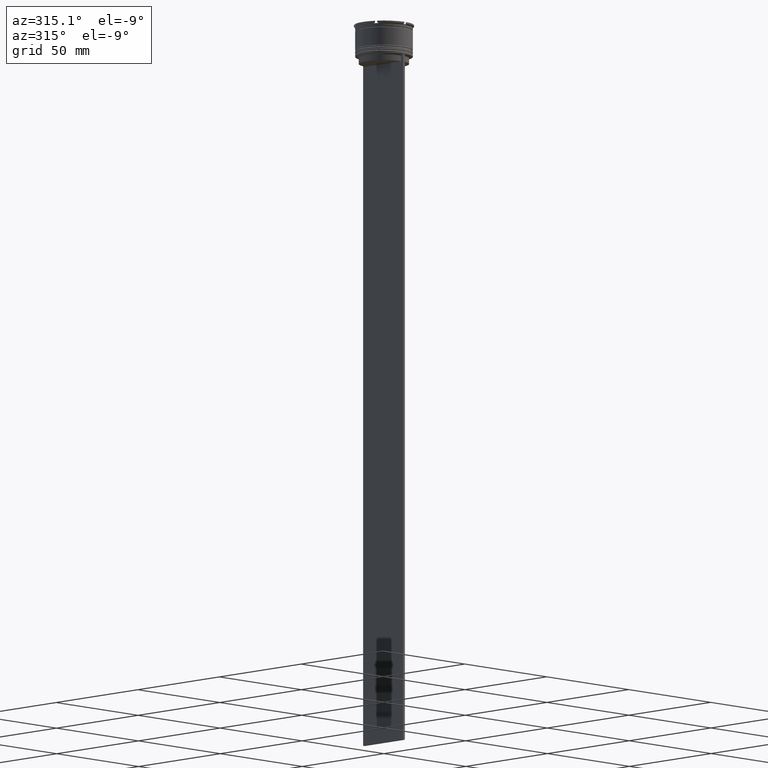
[diagram: clean part render]
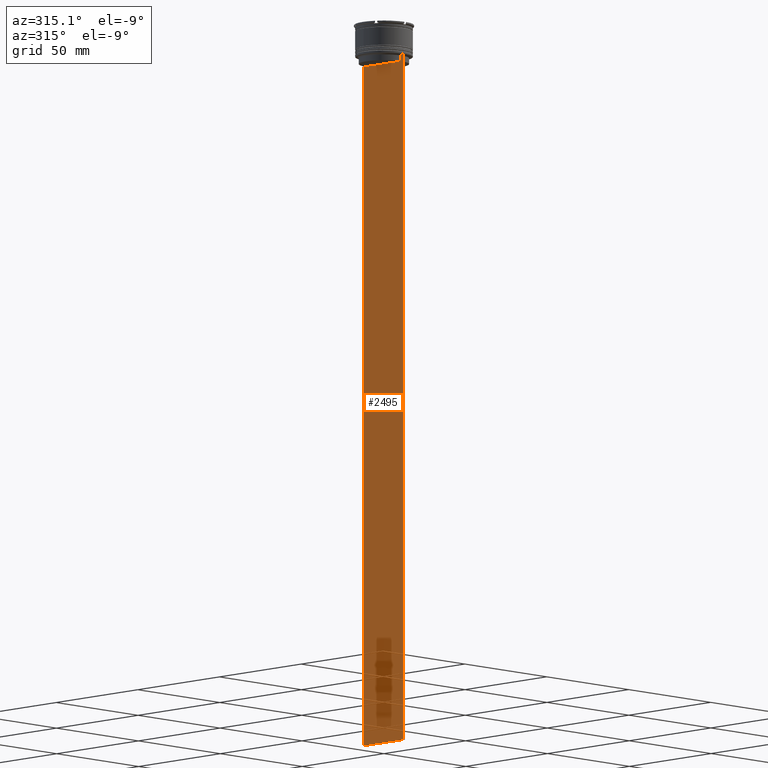
[diagram: same view with one face highlighted and labeled with its STEP entity id]
A machine part, auxiliary view. The second image highlights one B-rep face of the part: STEP entity #2495.
In plain terms, the highlighted planar face has unit normal (-1, 0, 0).
Its self-contained STEP definition (entity closure, byte-faithful):
#9 = CARTESIAN_POINT ( 'NONE',  ( -0.4999999999999997780, -11.22219891450652973, -14.16667035398018903 ) ) ;
#14 = EDGE_CURVE ( 'NONE', #767, #313, #2675, .T. ) ;
#53 = CARTESIAN_POINT ( 'NONE',  ( -0.4999999999999997780, -11.38902980942626719, -14.00000000000000178 ) ) ;
#58 = AXIS2_PLACEMENT_3D ( 'NONE', #1073, #882, #2788 ) ;
#74 = CARTESIAN_POINT ( 'NONE',  ( -0.4999999999999997780, -10.88852607105296322, 0.000000000000000000 ) ) ;
#90 = VERTEX_POINT ( 'NONE', #2469 ) ;
#109 = EDGE_CURVE ( 'NONE', #2188, #767, #2262, .T. ) ;
#141 = VERTEX_POINT ( 'NONE', #53 ) ;
#178 = ORIENTED_EDGE ( 'NONE', *, *, #14, .F. ) ;
#223 = CARTESIAN_POINT ( 'NONE',  ( -0.4999999999999997780, -11.05536450423839057, -14.33333718996393280 ) ) ;
#240 = CARTESIAN_POINT ( 'NONE',  ( -0.4999999999999997780, -12.25000000000000711, -314.0000000000000000 ) ) ;
#264 = ORIENTED_EDGE ( 'NONE', *, *, #1636, .F. ) ;
#306 = DIRECTION ( 'NONE',  ( -0.000000000000000000, -0.000000000000000000, 1.000000000000000000 ) ) ;
#313 = VERTEX_POINT ( 'NONE', #1238 ) ;
#327 = DIRECTION ( 'NONE',  ( 0.000000000000000000, -1.000000000000000000, 0.000000000000000000 ) ) ;
#352 = ORIENTED_EDGE ( 'NONE', *, *, #1271, .F. ) ;
#460 = EDGE_CURVE ( 'NONE', #313, #141, #1222, .T. ) ;
#486 = CARTESIAN_POINT ( 'NONE',  ( -0.4999999999999997780, 12.24999999999999289, -314.0000000000000000 ) ) ;
#509 = VERTEX_POINT ( 'NONE', #240 ) ;
#520 = CARTESIAN_POINT ( 'NONE',  ( -0.4999999999999997780, 10.88852607105296322, 0.000000000000000000 ) ) ;
#540 = DIRECTION ( 'NONE',  ( 0.000000000000000000, 0.000000000000000000, -1.000000000000000000 ) ) ;
#560 = LINE ( 'NONE', #2031, #1354 ) ;
#591 = ORIENTED_EDGE ( 'NONE', *, *, #1429, .F. ) ;
#702 = CARTESIAN_POINT ( 'NONE',  ( -0.4999999999999997780, 10.88852607105296322, -14.50000000000000000 ) ) ;
#727 = VERTEX_POINT ( 'NONE', #1167 ) ;
#735 = EDGE_CURVE ( 'NONE', #141, #1522, #560, .T. ) ;
#755 = CARTESIAN_POINT ( 'NONE',  ( -0.4999999999999997780, 12.24999999999999289, 10.52039967047845792 ) ) ;
#763 = EDGE_CURVE ( 'NONE', #727, #1302, #1411, .T. ) ;
#767 = VERTEX_POINT ( 'NONE', #1394 ) ;
#806 = DIRECTION ( 'NONE',  ( 0.000000000000000000, -1.000000000000000000, 0.000000000000000000 ) ) ;
#846 = VERTEX_POINT ( 'NONE', #2293 ) ;
#882 = DIRECTION ( 'NONE',  ( -1.000000000000000000, 0.000000000000000000, 0.000000000000000000 ) ) ;
#893 = EDGE_CURVE ( 'NONE', #509, #1302, #2306, .T. ) ;
#907 = EDGE_CURVE ( 'NONE', #727, #90, #2119, .T. ) ;
#934 = DIRECTION ( 'NONE',  ( 0.000000000000000000, -1.000000000000000000, 0.000000000000000000 ) ) ;
#1051 = CARTESIAN_POINT ( 'NONE',  ( -0.4999999999999997780, -12.25000000000000711, -14.00000000000000178 ) ) ;
#1073 = CARTESIAN_POINT ( 'NONE',  ( -0.4999999999999997780, -12.25000000000000711, 10.52039967047845792 ) ) ;
#1075 = CARTESIAN_POINT ( 'NONE',  ( -0.4999999999999997780, -10.88852607105296322, -14.50000000000000000 ) ) ;
#1098 = FACE_OUTER_BOUND ( 'NONE', #2437, .T. ) ;
#1127 = CARTESIAN_POINT ( 'NONE',  ( -0.4999999999999997780, 10.90000000000000213, -17.00000000000000000 ) ) ;
#1167 = CARTESIAN_POINT ( 'NONE',  ( -0.4999999999999997780, 12.24999999999999289, -14.00000000000000178 ) ) ;
#1210 = CARTESIAN_POINT ( 'NONE',  ( -0.4999999999999997780, 10.88852607105296144, -17.00000000000000000 ) ) ;
#1222 = B_SPLINE_CURVE_WITH_KNOTS ( 'NONE', 3,
 ( #1075, #223, #9, #1737 ),
 .UNSPECIFIED., .F., .F.,
 ( 4, 4 ),
 ( 0.05041323384703224469, 0.05112713601261603680 ),
 .UNSPECIFIED. ) ;
#1238 = CARTESIAN_POINT ( 'NONE',  ( -0.4999999999999997780, -10.88852607105296322, -14.50000000000000000 ) ) ;
#1260 = CARTESIAN_POINT ( 'NONE',  ( -0.4999999999999997780, -12.25000000000000711, -314.0000000000000000 ) ) ;
#1271 = EDGE_CURVE ( 'NONE', #1522, #509, #1479, .T. ) ;
#1302 = VERTEX_POINT ( 'NONE', #486 ) ;
#1312 = VECTOR ( 'NONE', #806, 1000.000000000000000 ) ;
#1313 = VECTOR ( 'NONE', #1389, 1000.000000000000000 ) ;
#1354 = VECTOR ( 'NONE', #934, 1000.000000000000000 ) ;
#1389 = DIRECTION ( 'NONE',  ( 0.000000000000000000, 0.000000000000000000, -1.000000000000000000 ) ) ;
#1394 = CARTESIAN_POINT ( 'NONE',  ( -0.4999999999999997780, -10.88852607105296144, -17.00000000000000000 ) ) ;
#1401 = LINE ( 'NONE', #520, #1313 ) ;
#1411 = LINE ( 'NONE', #755, #2484 ) ;
#1429 = EDGE_CURVE ( 'NONE', #846, #2188, #1401, .T. ) ;
#1479 = LINE ( 'NONE', #2343, #1766 ) ;
#1522 = VERTEX_POINT ( 'NONE', #2349 ) ;
#1524 = VECTOR ( 'NONE', #306, 1000.000000000000000 ) ;
#1636 = EDGE_CURVE ( 'NONE', #90, #846, #2172, .T. ) ;
#1737 = CARTESIAN_POINT ( 'NONE',  ( -0.4999999999999997780, -11.38902980942626719, -14.00000000000000178 ) ) ;
#1753 = DIRECTION ( 'NONE',  ( 0.000000000000000000, 0.000000000000000000, -1.000000000000000000 ) ) ;
#1766 = VECTOR ( 'NONE', #1753, 1000.000000000000000 ) ;
#1767 = CARTESIAN_POINT ( 'NONE',  ( -0.4999999999999997780, 11.38902980942626719, -14.00000000000000178 ) ) ;
#1945 = VECTOR ( 'NONE', #2336, 1000.000000000000000 ) ;
#2017 = ORIENTED_EDGE ( 'NONE', *, *, #907, .F. ) ;
#2031 = CARTESIAN_POINT ( 'NONE',  ( -0.4999999999999997780, -12.25000000000000711, -14.00000000000000178 ) ) ;
#2119 = LINE ( 'NONE', #1051, #1312 ) ;
#2143 = PLANE ( 'NONE',  #58 ) ;
#2172 = B_SPLINE_CURVE_WITH_KNOTS ( 'NONE', 3,
 ( #1767, #2792, #2398, #702 ),
 .UNSPECIFIED., .F., .F.,
 ( 4, 4 ),
 ( 0.01935560801904634073, 0.02006307108468586772 ),
 .UNSPECIFIED. ) ;
#2188 = VERTEX_POINT ( 'NONE', #1210 ) ;
#2227 = ORIENTED_EDGE ( 'NONE', *, *, #460, .F. ) ;
#2262 = LINE ( 'NONE', #1127, #2384 ) ;
#2293 = CARTESIAN_POINT ( 'NONE',  ( -0.4999999999999997780, 10.88852607105296322, -14.50000000000000000 ) ) ;
#2306 = LINE ( 'NONE', #1260, #1945 ) ;
#2336 = DIRECTION ( 'NONE',  ( 0.000000000000000000, 1.000000000000000000, 0.000000000000000000 ) ) ;
#2343 = CARTESIAN_POINT ( 'NONE',  ( -0.4999999999999997780, -12.25000000000000711, 10.52039967047845792 ) ) ;
#2349 = CARTESIAN_POINT ( 'NONE',  ( -0.4999999999999997780, -12.25000000000000711, -14.00000000000000178 ) ) ;
#2384 = VECTOR ( 'NONE', #327, 1000.000000000000000 ) ;
#2398 = CARTESIAN_POINT ( 'NONE',  ( -0.4999999999999997780, 11.05536450345590538, -14.33333719074559376 ) ) ;
#2437 = EDGE_LOOP ( 'NONE', ( #264, #2017, #2709, #2647, #352, #2487, #2227, #178, #2568, #591 ) ) ;
#2469 = CARTESIAN_POINT ( 'NONE',  ( -0.4999999999999997780, 11.38902980942626719, -14.00000000000000178 ) ) ;
#2484 = VECTOR ( 'NONE', #540, 1000.000000000000000 ) ;
#2487 = ORIENTED_EDGE ( 'NONE', *, *, #735, .F. ) ;
#2495 = ADVANCED_FACE ( 'NONE', ( #1098 ), #2143, .T. ) ;
#2568 = ORIENTED_EDGE ( 'NONE', *, *, #109, .F. ) ;
#2647 = ORIENTED_EDGE ( 'NONE', *, *, #893, .F. ) ;
#2675 = LINE ( 'NONE', #74, #1524 ) ;
#2709 = ORIENTED_EDGE ( 'NONE', *, *, #763, .T. ) ;
#2788 = DIRECTION ( 'NONE',  ( 0.000000000000000000, 0.000000000000000000, 1.000000000000000000 ) ) ;
#2792 = CARTESIAN_POINT ( 'NONE',  ( -0.4999999999999997780, 11.22219891375843304, -14.16667035472756808 ) ) ;